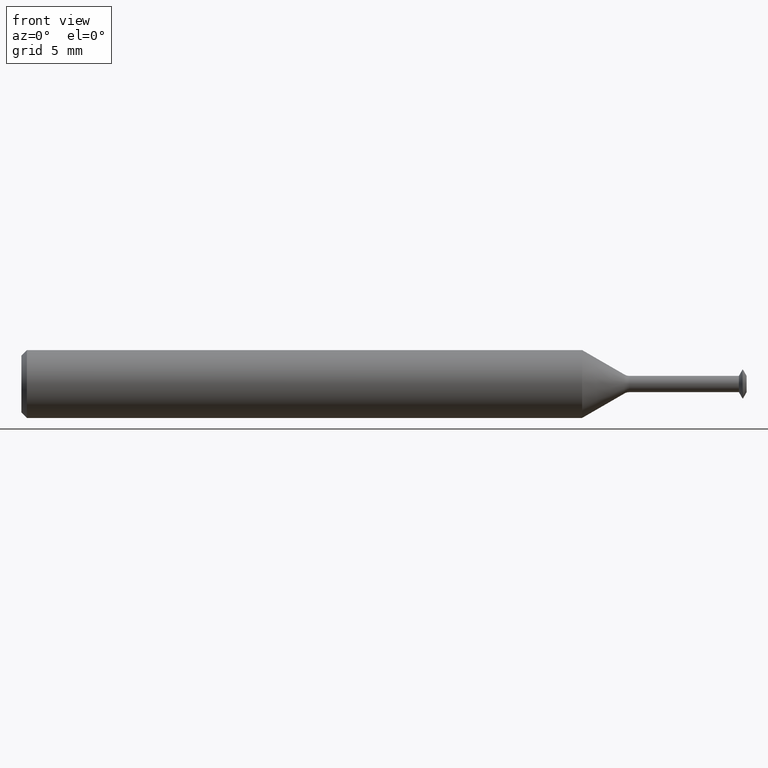
[diagram: clean part render]
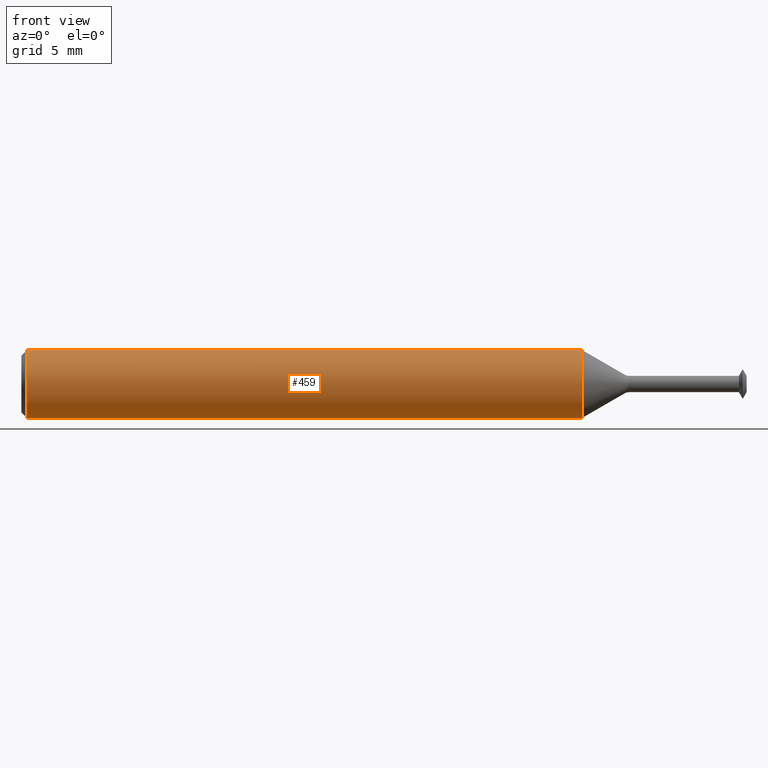
[diagram: same view with one face highlighted and labeled with its STEP entity id]
A machine part, front view. The second image highlights one B-rep face of the part: STEP entity #459.
In plain terms, the highlighted cylindrical surface (edge-blend (fillet) strip) has radius 2.3774 mm, axis along (-1, -0, -0).
Its self-contained STEP definition (entity closure, byte-faithful):
#3 = VERTEX_POINT ( 'NONE', #347 ) ;
#16 = DIRECTION ( 'NONE',  ( -1.000000000000000000, -0.0000000000000000000, -0.0000000000000000000 ) ) ;
#22 = DIRECTION ( 'NONE',  ( 1.000000000000000000, 0.0000000000000000000, 0.0000000000000000000 ) ) ;
#98 = ORIENTED_EDGE ( 'NONE', *, *, #200, .T. ) ;
#126 = ORIENTED_EDGE ( 'NONE', *, *, #174, .T. ) ;
#149 = LINE ( 'NONE', #215, #442 ) ;
#156 = EDGE_CURVE ( 'NONE', #395, #3, #229, .T. ) ;
#161 = VECTOR ( 'NONE', #296, 39.37007874015748143 ) ;
#174 = EDGE_CURVE ( 'NONE', #225, #193, #411, .T. ) ;
#178 = CARTESIAN_POINT ( 'NONE',  ( 0.0000000000000000000, 0.0000000000000000000, 0.0000000000000000000 ) ) ;
#181 = DIRECTION ( 'NONE',  ( 0.0000000000000000000, 0.0000000000000000000, -1.000000000000000000 ) ) ;
#184 = EDGE_LOOP ( 'NONE', ( #435, #492, #98, #126 ) ) ;
#186 = DIRECTION ( 'NONE',  ( -1.000000000000000000, -0.0000000000000000000, -0.0000000000000000000 ) ) ;
#193 = VERTEX_POINT ( 'NONE', #267 ) ;
#200 = EDGE_CURVE ( 'NONE', #3, #225, #149, .T. ) ;
#211 = AXIS2_PLACEMENT_3D ( 'NONE', #406, #390, #354 ) ;
#215 = CARTESIAN_POINT ( 'NONE',  ( 0.0000000000000000000, 0.0000000000000000000, 0.09360000000000001652 ) ) ;
#225 = VERTEX_POINT ( 'NONE', #447 ) ;
#228 = CARTESIAN_POINT ( 'NONE',  ( 0.01499999999999997863, 0.0000000000000000000, 0.0000000000000000000 ) ) ;
#229 = CIRCLE ( 'NONE', #211, 0.09360000000000001652 ) ;
#267 = CARTESIAN_POINT ( 'NONE',  ( 0.01499999999999997863, 1.146269404001922775E-17, -0.09360000000000001652 ) ) ;
#293 = CARTESIAN_POINT ( 'NONE',  ( 0.0000000000000000000, 1.146269404001922775E-17, -0.09360000000000001652 ) ) ;
#296 = DIRECTION ( 'NONE',  ( -1.000000000000000000, -0.0000000000000000000, -0.0000000000000000000 ) ) ;
#306 = FACE_OUTER_BOUND ( 'NONE', #184, .T. ) ;
#347 = CARTESIAN_POINT ( 'NONE',  ( 1.546308552341094211, 0.0000000000000000000, 0.09360000000000001652 ) ) ;
#354 = DIRECTION ( 'NONE',  ( 0.0000000000000000000, 0.0000000000000000000, 1.000000000000000000 ) ) ;
#380 = CARTESIAN_POINT ( 'NONE',  ( 1.546308552341094211, 1.146269404001922621E-17, -0.09360000000000001652 ) ) ;
#390 = DIRECTION ( 'NONE',  ( -1.000000000000000000, -0.0000000000000000000, -0.0000000000000000000 ) ) ;
#395 = VERTEX_POINT ( 'NONE', #380 ) ;
#397 = AXIS2_PLACEMENT_3D ( 'NONE', #178, #16, #426 ) ;
#406 = CARTESIAN_POINT ( 'NONE',  ( 1.546308552341094211, 0.0000000000000000000, 0.0000000000000000000 ) ) ;
#411 = CIRCLE ( 'NONE', #462, 0.09360000000000001652 ) ;
#426 = DIRECTION ( 'NONE',  ( 0.0000000000000000000, 0.0000000000000000000, 1.000000000000000000 ) ) ;
#435 = ORIENTED_EDGE ( 'NONE', *, *, #500, .F. ) ;
#442 = VECTOR ( 'NONE', #186, 39.37007874015748143 ) ;
#447 = CARTESIAN_POINT ( 'NONE',  ( 0.01499999999999997863, 0.0000000000000000000, 0.09360000000000001652 ) ) ;
#459 = ADVANCED_FACE ( 'NONE', ( #306 ), #487, .T. ) ;
#462 = AXIS2_PLACEMENT_3D ( 'NONE', #228, #22, #181 ) ;
#477 = LINE ( 'NONE', #293, #161 ) ;
#487 = CYLINDRICAL_SURFACE ( 'NONE', #397, 0.09360000000000001652 ) ;
#492 = ORIENTED_EDGE ( 'NONE', *, *, #156, .T. ) ;
#500 = EDGE_CURVE ( 'NONE', #395, #193, #477, .T. ) ;